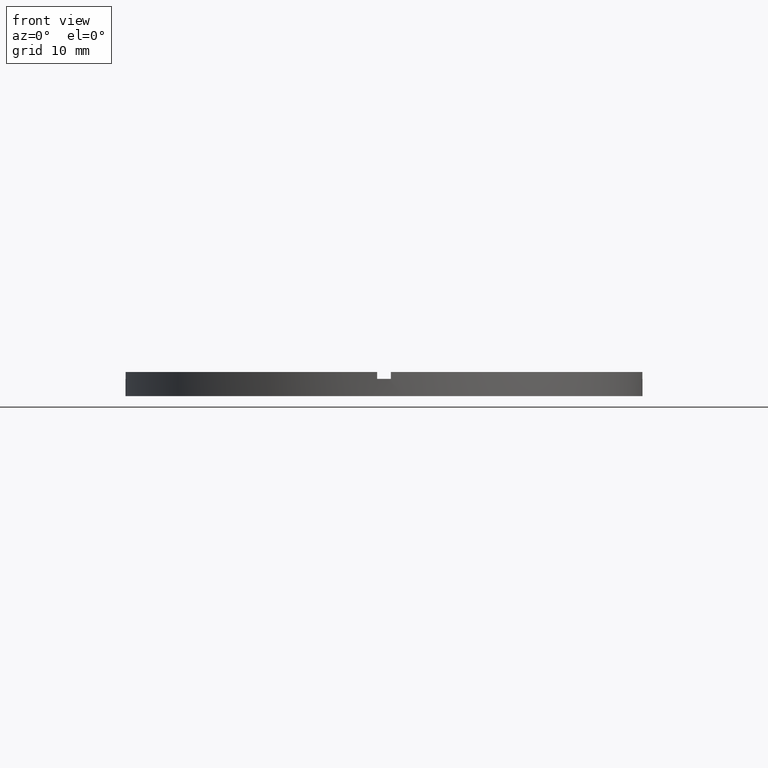
[diagram: clean part render]
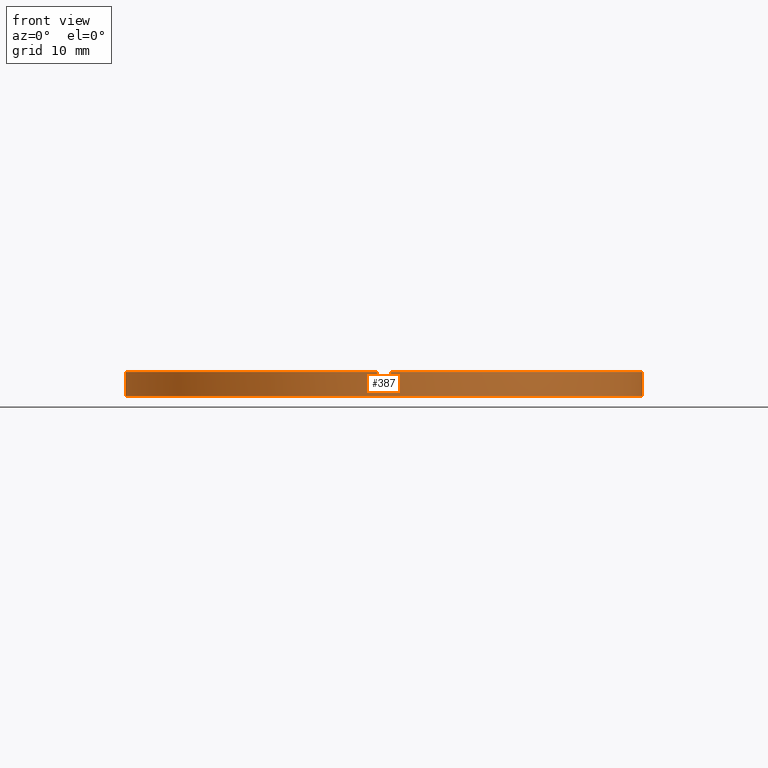
[diagram: same view with one face highlighted and labeled with its STEP entity id]
A machine part, front view. The second image highlights one B-rep face of the part: STEP entity #387.
In plain terms, the highlighted cylindrical surface (partial cylindrical patch) has radius 37.5 mm, axis along (-0, -0, -1).
Its self-contained STEP definition (entity closure, byte-faithful):
#2 = EDGE_CURVE ( 'NONE', #450, #456, #379, .T. ) ;
#10 = CARTESIAN_POINT ( 'NONE',  ( -37.48666429545312440, -1.000000000000027534, 3.500000000000000000 ) ) ;
#18 = AXIS2_PLACEMENT_3D ( 'NONE', #286, #716, #702 ) ;
#23 = DIRECTION ( 'NONE',  ( -0.000000000000000000, 0.000000000000000000, 1.000000000000000000 ) ) ;
#25 = FACE_OUTER_BOUND ( 'NONE', #228, .T. ) ;
#27 = CARTESIAN_POINT ( 'NONE',  ( -37.48666429545312440, -1.000000000000027534, 2.500000000000000000 ) ) ;
#31 = VECTOR ( 'NONE', #62, 1000.000000000000000 ) ;
#36 = CIRCLE ( 'NONE', #122, 37.50000000000000711 ) ;
#38 = CYLINDRICAL_SURFACE ( 'NONE', #170, 37.50000000000000711 ) ;
#44 = DIRECTION ( 'NONE',  ( 0.000000000000000000, 0.000000000000000000, 1.000000000000000000 ) ) ;
#47 = EDGE_CURVE ( 'NONE', #746, #715, #659, .T. ) ;
#48 = CARTESIAN_POINT ( 'NONE',  ( -37.50000000000000711, 0.000000000000000000, 0.000000000000000000 ) ) ;
#62 = DIRECTION ( 'NONE',  ( -0.000000000000000000, -0.000000000000000000, -1.000000000000000000 ) ) ;
#64 = DIRECTION ( 'NONE',  ( 0.000000000000000000, 0.000000000000000000, 1.000000000000000000 ) ) ;
#65 = CARTESIAN_POINT ( 'NONE',  ( -1.000000000000160094, -37.48666429545312440, 3.500000000000000000 ) ) ;
#82 = LINE ( 'NONE', #86, #337 ) ;
#86 = CARTESIAN_POINT ( 'NONE',  ( -1.000000000000160094, -37.48666429545312440, 3.500000000000000000 ) ) ;
#94 = CARTESIAN_POINT ( 'NONE',  ( 0.000000000000000000, 0.000000000000000000, 3.500000000000000000 ) ) ;
#106 = VERTEX_POINT ( 'NONE', #452 ) ;
#117 = ORIENTED_EDGE ( 'NONE', *, *, #301, .F. ) ;
#122 = AXIS2_PLACEMENT_3D ( 'NONE', #411, #244, #513 ) ;
#126 = CARTESIAN_POINT ( 'NONE',  ( 0.9999999999998400169, -37.48666429545313150, 2.500000000000000000 ) ) ;
#135 = ORIENTED_EDGE ( 'NONE', *, *, #2, .T. ) ;
#153 = ORIENTED_EDGE ( 'NONE', *, *, #722, .T. ) ;
#170 = AXIS2_PLACEMENT_3D ( 'NONE', #496, #688, #533 ) ;
#173 = CARTESIAN_POINT ( 'NONE',  ( -37.50000000000000711, 0.000000000000000000, 3.500000000000000000 ) ) ;
#180 = CARTESIAN_POINT ( 'NONE',  ( 0.9999999999998400169, -37.48666429545313150, 3.500000000000000000 ) ) ;
#192 = AXIS2_PLACEMENT_3D ( 'NONE', #94, #44, #492 ) ;
#195 = CARTESIAN_POINT ( 'NONE',  ( 0.9999999999998400169, -37.48666429545313150, 3.500000000000000000 ) ) ;
#201 = ORIENTED_EDGE ( 'NONE', *, *, #320, .F. ) ;
#213 = ORIENTED_EDGE ( 'NONE', *, *, #592, .T. ) ;
#228 = EDGE_LOOP ( 'NONE', ( #374, #671, #135, #117, #213, #648, #153, #201, #248, #774, #499, #413 ) ) ;
#235 = CARTESIAN_POINT ( 'NONE',  ( -37.48666429545312440, -1.000000000000027534, 3.500000000000000000 ) ) ;
#244 = DIRECTION ( 'NONE',  ( 0.000000000000000000, 0.000000000000000000, 1.000000000000000000 ) ) ;
#248 = ORIENTED_EDGE ( 'NONE', *, *, #47, .T. ) ;
#261 = DIRECTION ( 'NONE',  ( -0.000000000000000000, -0.000000000000000000, -1.000000000000000000 ) ) ;
#267 = CARTESIAN_POINT ( 'NONE',  ( 0.000000000000000000, 0.000000000000000000, 0.000000000000000000 ) ) ;
#274 = CARTESIAN_POINT ( 'NONE',  ( 0.000000000000000000, 0.000000000000000000, 2.500000000000000000 ) ) ;
#278 = CARTESIAN_POINT ( 'NONE',  ( 0.000000000000000000, 0.000000000000000000, 2.500000000000000000 ) ) ;
#279 = DIRECTION ( 'NONE',  ( -0.000000000000000000, -0.000000000000000000, -1.000000000000000000 ) ) ;
#281 = CIRCLE ( 'NONE', #192, 37.50000000000000711 ) ;
#286 = CARTESIAN_POINT ( 'NONE',  ( 0.000000000000000000, 0.000000000000000000, 2.500000000000000000 ) ) ;
#293 = CIRCLE ( 'NONE', #565, 37.50000000000000711 ) ;
#301 = EDGE_CURVE ( 'NONE', #755, #456, #281, .T. ) ;
#302 = LINE ( 'NONE', #195, #546 ) ;
#304 = AXIS2_PLACEMENT_3D ( 'NONE', #278, #326, #667 ) ;
#308 = CIRCLE ( 'NONE', #458, 37.50000000000000711 ) ;
#312 = DIRECTION ( 'NONE',  ( -0.000000000000000000, -0.000000000000000000, -1.000000000000000000 ) ) ;
#314 = CARTESIAN_POINT ( 'NONE',  ( 37.48666429545312440, -1.000000000000157430, 3.500000000000000000 ) ) ;
#316 = EDGE_CURVE ( 'NONE', #450, #106, #525, .T. ) ;
#320 = EDGE_CURVE ( 'NONE', #746, #430, #36, .T. ) ;
#326 = DIRECTION ( 'NONE',  ( 0.000000000000000000, 0.000000000000000000, 1.000000000000000000 ) ) ;
#337 = VECTOR ( 'NONE', #772, 1000.000000000000000 ) ;
#341 = LINE ( 'NONE', #173, #573 ) ;
#371 = VECTOR ( 'NONE', #64, 1000.000000000000000 ) ;
#374 = ORIENTED_EDGE ( 'NONE', *, *, #563, .F. ) ;
#375 = EDGE_CURVE ( 'NONE', #684, #715, #524, .T. ) ;
#379 = LINE ( 'NONE', #314, #371 ) ;
#387 = ADVANCED_FACE ( 'NONE', ( #25 ), #38, .T. ) ;
#389 = DIRECTION ( 'NONE',  ( 1.000000000000000000, 0.000000000000000000, 0.000000000000000000 ) ) ;
#407 = VECTOR ( 'NONE', #261, 1000.000000000000000 ) ;
#409 = VERTEX_POINT ( 'NONE', #611 ) ;
#411 = CARTESIAN_POINT ( 'NONE',  ( 0.000000000000000000, 0.000000000000000000, 3.500000000000000000 ) ) ;
#413 = ORIENTED_EDGE ( 'NONE', *, *, #440, .T. ) ;
#417 = VERTEX_POINT ( 'NONE', #48 ) ;
#423 = VERTEX_POINT ( 'NONE', #126 ) ;
#430 = VERTEX_POINT ( 'NONE', #65 ) ;
#440 = EDGE_CURVE ( 'NONE', #417, #409, #293, .T. ) ;
#442 = CARTESIAN_POINT ( 'NONE',  ( 37.48666429545312440, -1.000000000000157430, 2.500000000000000000 ) ) ;
#443 = CARTESIAN_POINT ( 'NONE',  ( -37.50000000000000711, 0.000000000000000000, 2.500000000000000000 ) ) ;
#450 = VERTEX_POINT ( 'NONE', #442 ) ;
#451 = CARTESIAN_POINT ( 'NONE',  ( 37.50000000000000711, 4.592425496802575156E-15, 3.500000000000000000 ) ) ;
#452 = CARTESIAN_POINT ( 'NONE',  ( 37.50000000000000711, 4.592425496802575156E-15, 2.500000000000000000 ) ) ;
#456 = VERTEX_POINT ( 'NONE', #767 ) ;
#458 = AXIS2_PLACEMENT_3D ( 'NONE', #274, #23, #540 ) ;
#469 = EDGE_CURVE ( 'NONE', #770, #423, #308, .T. ) ;
#492 = DIRECTION ( 'NONE',  ( 1.000000000000000000, 0.000000000000000000, 0.000000000000000000 ) ) ;
#496 = CARTESIAN_POINT ( 'NONE',  ( 0.000000000000000000, 0.000000000000000000, 3.500000000000000000 ) ) ;
#498 = DIRECTION ( 'NONE',  ( 0.000000000000000000, 0.000000000000000000, 1.000000000000000000 ) ) ;
#499 = ORIENTED_EDGE ( 'NONE', *, *, #735, .T. ) ;
#513 = DIRECTION ( 'NONE',  ( 1.000000000000000000, 0.000000000000000000, 0.000000000000000000 ) ) ;
#524 = CIRCLE ( 'NONE', #18, 37.50000000000000711 ) ;
#525 = CIRCLE ( 'NONE', #304, 37.50000000000000711 ) ;
#533 = DIRECTION ( 'NONE',  ( -1.000000000000000000, 0.000000000000000000, 0.000000000000000000 ) ) ;
#540 = DIRECTION ( 'NONE',  ( 1.000000000000000000, 0.000000000000000000, 0.000000000000000000 ) ) ;
#541 = LINE ( 'NONE', #451, #31 ) ;
#546 = VECTOR ( 'NONE', #312, 1000.000000000000000 ) ;
#563 = EDGE_CURVE ( 'NONE', #106, #409, #541, .T. ) ;
#564 = CARTESIAN_POINT ( 'NONE',  ( -1.000000000000160094, -37.48666429545312440, 2.500000000000000000 ) ) ;
#565 = AXIS2_PLACEMENT_3D ( 'NONE', #267, #498, #389 ) ;
#573 = VECTOR ( 'NONE', #279, 1000.000000000000000 ) ;
#592 = EDGE_CURVE ( 'NONE', #755, #423, #302, .T. ) ;
#611 = CARTESIAN_POINT ( 'NONE',  ( 37.50000000000000711, 4.592425496802575156E-15, 0.000000000000000000 ) ) ;
#648 = ORIENTED_EDGE ( 'NONE', *, *, #469, .F. ) ;
#659 = LINE ( 'NONE', #10, #407 ) ;
#667 = DIRECTION ( 'NONE',  ( 1.000000000000000000, 0.000000000000000000, 0.000000000000000000 ) ) ;
#671 = ORIENTED_EDGE ( 'NONE', *, *, #316, .F. ) ;
#684 = VERTEX_POINT ( 'NONE', #443 ) ;
#688 = DIRECTION ( 'NONE',  ( -0.000000000000000000, -0.000000000000000000, -1.000000000000000000 ) ) ;
#702 = DIRECTION ( 'NONE',  ( 1.000000000000000000, 0.000000000000000000, 0.000000000000000000 ) ) ;
#715 = VERTEX_POINT ( 'NONE', #27 ) ;
#716 = DIRECTION ( 'NONE',  ( 0.000000000000000000, 0.000000000000000000, 1.000000000000000000 ) ) ;
#722 = EDGE_CURVE ( 'NONE', #770, #430, #82, .T. ) ;
#735 = EDGE_CURVE ( 'NONE', #684, #417, #341, .T. ) ;
#746 = VERTEX_POINT ( 'NONE', #235 ) ;
#755 = VERTEX_POINT ( 'NONE', #180 ) ;
#767 = CARTESIAN_POINT ( 'NONE',  ( 37.48666429545312440, -1.000000000000157430, 3.500000000000000000 ) ) ;
#770 = VERTEX_POINT ( 'NONE', #564 ) ;
#772 = DIRECTION ( 'NONE',  ( 0.000000000000000000, 0.000000000000000000, 1.000000000000000000 ) ) ;
#774 = ORIENTED_EDGE ( 'NONE', *, *, #375, .F. ) ;